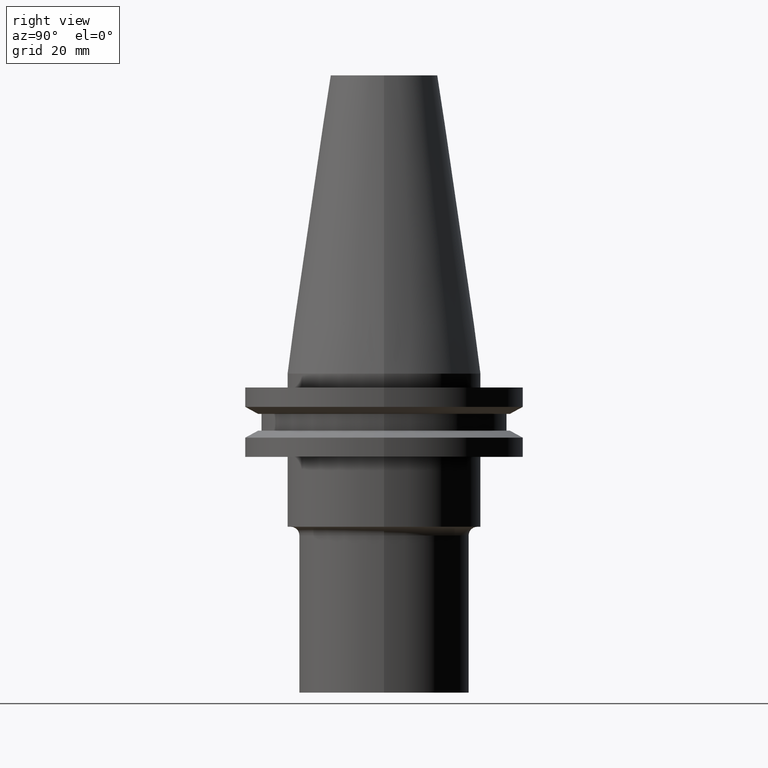
[diagram: clean part render]
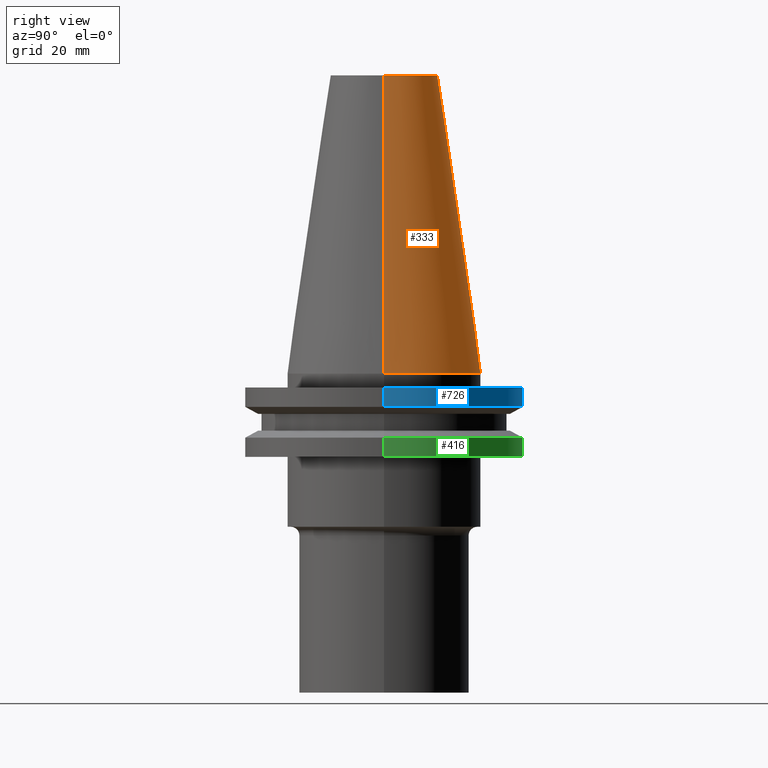
[diagram: same view with three faces highlighted in distinct colors, each labeled with its STEP entity id]
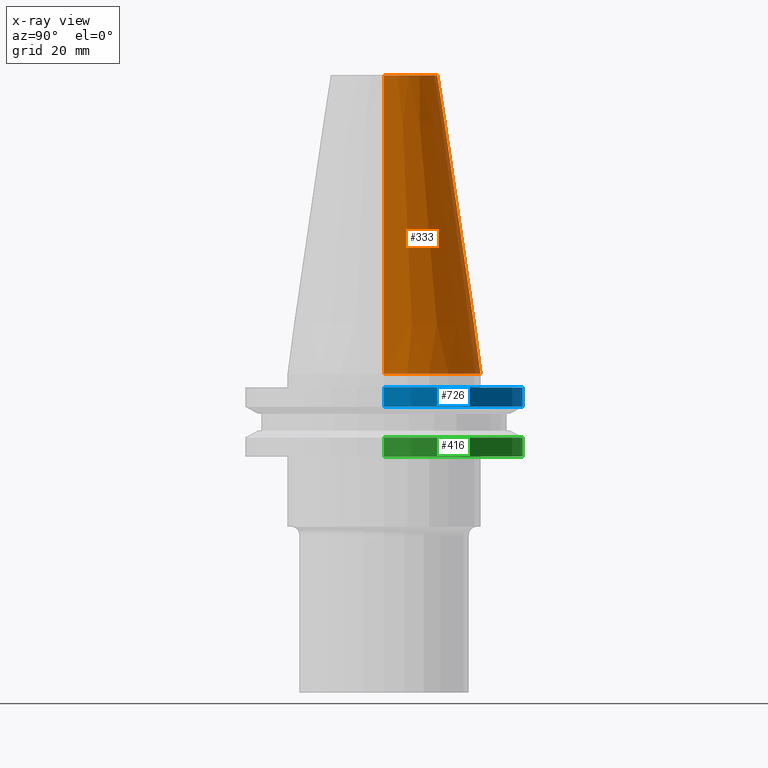
[diagram: x-ray of the same camera — body ghosted, the three highlighted faces saturated]
A machine part, right view with three faces highlighted in distinct colors.
The next image is the same camera in x-ray (body ghosted, the three faces saturated) — at least one of them is partly hidden behind the body in this view.
Their STEP definitions:

[orange] entity #333 — the highlighted conical surface has half-angle 8.297 deg.
#2 = VERTEX_POINT ( 'NONE', #377 ) ;
#5 = EDGE_CURVE ( 'NONE', #2, #93, #462, .T. ) ;
#12 = DIRECTION ( 'NONE',  ( 0.1443082272672999711, 1.767266086135276757E-17, -0.9895327864921755756 ) ) ;
#36 = ORIENTED_EDGE ( 'NONE', *, *, #292, .F. ) ;
#41 = VERTEX_POINT ( 'NONE', #548 ) ;
#61 = AXIS2_PLACEMENT_3D ( 'NONE', #593, #531, #595 ) ;
#93 = VERTEX_POINT ( 'NONE', #94 ) ;
#94 = CARTESIAN_POINT ( 'NONE',  ( -22.22500000000000142, 0.000000000000000000, 0.000000000000000000 ) ) ;
#140 = ORIENTED_EDGE ( 'NONE', *, *, #265, .F. ) ;
#156 = VECTOR ( 'NONE', #12, 999.9999999999998863 ) ;
#160 = ORIENTED_EDGE ( 'NONE', *, *, #285, .T. ) ;
#171 = AXIS2_PLACEMENT_3D ( 'NONE', #719, #357, #532 ) ;
#187 = FACE_OUTER_BOUND ( 'NONE', #327, .T. ) ;
#212 = CONICAL_SURFACE ( 'NONE', #61, 22.22500000000000142, 0.1448138465474119174 ) ;
#242 = CARTESIAN_POINT ( 'NONE',  ( 22.22500000000000142, 2.721777511104992849E-15, 0.000000000000000000 ) ) ;
#265 = EDGE_CURVE ( 'NONE', #41, #93, #759, .T. ) ;
#285 = EDGE_CURVE ( 'NONE', #568, #2, #476, .T. ) ;
#292 = EDGE_CURVE ( 'NONE', #568, #41, #667, .T. ) ;
#327 = EDGE_LOOP ( 'NONE', ( #36, #160, #507, #140 ) ) ;
#333 = ADVANCED_FACE ( 'NONE', ( #187 ), #212, .T. ) ;
#357 = DIRECTION ( 'NONE',  ( -0.000000000000000000, -0.000000000000000000, 1.000000000000000000 ) ) ;
#377 = CARTESIAN_POINT ( 'NONE',  ( 22.22500000000000142, 2.721777511104992849E-15, 0.000000000000000000 ) ) ;
#392 = CARTESIAN_POINT ( 'NONE',  ( -22.22500000000000142, 0.000000000000000000, 0.000000000000000000 ) ) ;
#402 = CARTESIAN_POINT ( 'NONE',  ( 12.27178102086201150, 2.112318622904291439E-15, 68.25000000000000000 ) ) ;
#425 = VECTOR ( 'NONE', #633, 999.9999999999998863 ) ;
#431 = CARTESIAN_POINT ( 'NONE',  ( 0.000000000000000000, 0.000000000000000000, 0.000000000000000000 ) ) ;
#462 = CIRCLE ( 'NONE', #663, 22.22500000000000142 ) ;
#476 = LINE ( 'NONE', #242, #156 ) ;
#507 = ORIENTED_EDGE ( 'NONE', *, *, #5, .T. ) ;
#531 = DIRECTION ( 'NONE',  ( 0.000000000000000000, 0.000000000000000000, -1.000000000000000000 ) ) ;
#532 = DIRECTION ( 'NONE',  ( 1.000000000000000000, 0.000000000000000000, 0.000000000000000000 ) ) ;
#548 = CARTESIAN_POINT ( 'NONE',  ( -12.27178102086201150, 0.000000000000000000, 68.25000000000000000 ) ) ;
#568 = VERTEX_POINT ( 'NONE', #402 ) ;
#593 = CARTESIAN_POINT ( 'NONE',  ( 0.000000000000000000, 0.000000000000000000, 0.000000000000000000 ) ) ;
#595 = DIRECTION ( 'NONE',  ( -1.000000000000000000, 0.000000000000000000, 0.000000000000000000 ) ) ;
#617 = DIRECTION ( 'NONE',  ( 1.000000000000000000, 0.000000000000000000, 0.000000000000000000 ) ) ;
#624 = DIRECTION ( 'NONE',  ( -0.000000000000000000, -0.000000000000000000, 1.000000000000000000 ) ) ;
#633 = DIRECTION ( 'NONE',  ( -0.1443082272672999711, 0.000000000000000000, -0.9895327864921755756 ) ) ;
#663 = AXIS2_PLACEMENT_3D ( 'NONE', #431, #624, #617 ) ;
#667 = CIRCLE ( 'NONE', #171, 12.27178102086201150 ) ;
#719 = CARTESIAN_POINT ( 'NONE',  ( 0.000000000000000000, 0.000000000000000000, 68.25000000000000000 ) ) ;
#759 = LINE ( 'NONE', #392, #425 ) ;

[blue] entity #726 — the highlighted cylindrical surface (partial cylindrical patch) has radius 31.75 mm, axis along (-0, -0, 1).
#17 = VERTEX_POINT ( 'NONE', #257 ) ;
#26 = DIRECTION ( 'NONE',  ( -0.000000000000000000, -0.000000000000000000, 1.000000000000000000 ) ) ;
#34 = VERTEX_POINT ( 'NONE', #435 ) ;
#44 = FACE_OUTER_BOUND ( 'NONE', #668, .T. ) ;
#52 = DIRECTION ( 'NONE',  ( -0.000000000000000000, -0.000000000000000000, 1.000000000000000000 ) ) ;
#76 = VECTOR ( 'NONE', #552, 1000.000000000000000 ) ;
#96 = CARTESIAN_POINT ( 'NONE',  ( 31.75000000000000000, 0.000000000000000000, -7.605276606597335842 ) ) ;
#106 = AXIS2_PLACEMENT_3D ( 'NONE', #122, #303, #131 ) ;
#122 = CARTESIAN_POINT ( 'NONE',  ( 0.000000000000000000, 0.000000000000000000, -3.174999999999997158 ) ) ;
#128 = AXIS2_PLACEMENT_3D ( 'NONE', #504, #52, #575 ) ;
#131 = DIRECTION ( 'NONE',  ( 1.000000000000000000, 0.000000000000000000, 0.000000000000000000 ) ) ;
#135 = EDGE_CURVE ( 'NONE', #601, #34, #474, .T. ) ;
#141 = LINE ( 'NONE', #491, #76 ) ;
#143 = ORIENTED_EDGE ( 'NONE', *, *, #135, .T. ) ;
#229 = CYLINDRICAL_SURFACE ( 'NONE', #534, 31.75000000000000000 ) ;
#257 = CARTESIAN_POINT ( 'NONE',  ( -31.75000000000000000, 3.888253587292846476E-15, -3.174999999999997158 ) ) ;
#287 = DIRECTION ( 'NONE',  ( 1.000000000000000000, 0.000000000000000000, 0.000000000000000000 ) ) ;
#303 = DIRECTION ( 'NONE',  ( -0.000000000000000000, -0.000000000000000000, 1.000000000000000000 ) ) ;
#306 = ORIENTED_EDGE ( 'NONE', *, *, #596, .F. ) ;
#313 = ORIENTED_EDGE ( 'NONE', *, *, #362, .F. ) ;
#328 = LINE ( 'NONE', #566, #724 ) ;
#362 = EDGE_CURVE ( 'NONE', #763, #17, #638, .T. ) ;
#408 = CARTESIAN_POINT ( 'NONE',  ( 0.000000000000000000, 0.000000000000000000, 68.25000000000000000 ) ) ;
#435 = CARTESIAN_POINT ( 'NONE',  ( -31.75000000000000000, 3.888253587292846476E-15, -7.605276606597335842 ) ) ;
#474 = CIRCLE ( 'NONE', #128, 31.75000000000000000 ) ;
#491 = CARTESIAN_POINT ( 'NONE',  ( 31.75000000000000000, 0.000000000000000000, 68.25000000000000000 ) ) ;
#504 = CARTESIAN_POINT ( 'NONE',  ( 0.000000000000000000, 0.000000000000000000, -7.605276606597335842 ) ) ;
#534 = AXIS2_PLACEMENT_3D ( 'NONE', #408, #766, #287 ) ;
#552 = DIRECTION ( 'NONE',  ( -0.000000000000000000, -0.000000000000000000, 1.000000000000000000 ) ) ;
#566 = CARTESIAN_POINT ( 'NONE',  ( -31.75000000000000000, 3.888253587292846476E-15, 68.25000000000000000 ) ) ;
#575 = DIRECTION ( 'NONE',  ( 1.000000000000000000, 0.000000000000000000, 0.000000000000000000 ) ) ;
#596 = EDGE_CURVE ( 'NONE', #601, #763, #141, .T. ) ;
#601 = VERTEX_POINT ( 'NONE', #96 ) ;
#638 = CIRCLE ( 'NONE', #106, 31.75000000000000000 ) ;
#668 = EDGE_LOOP ( 'NONE', ( #143, #732, #313, #306 ) ) ;
#705 = CARTESIAN_POINT ( 'NONE',  ( 31.75000000000000000, 0.000000000000000000, -3.174999999999997158 ) ) ;
#722 = EDGE_CURVE ( 'NONE', #34, #17, #328, .T. ) ;
#724 = VECTOR ( 'NONE', #26, 1000.000000000000000 ) ;
#726 = ADVANCED_FACE ( 'NONE', ( #44 ), #229, .T. ) ;
#732 = ORIENTED_EDGE ( 'NONE', *, *, #722, .T. ) ;
#763 = VERTEX_POINT ( 'NONE', #705 ) ;
#766 = DIRECTION ( 'NONE',  ( -0.000000000000000000, -0.000000000000000000, 1.000000000000000000 ) ) ;

[green] entity #416 — the highlighted cylindrical surface (partial cylindrical patch) has radius 31.75 mm, axis along (-0, -0, 1).
#14 = EDGE_CURVE ( 'NONE', #90, #193, #684, .T. ) ;
#25 = CARTESIAN_POINT ( 'NONE',  ( -31.75000000000000000, 3.888253587292846476E-15, 68.25000000000000000 ) ) ;
#38 = AXIS2_PLACEMENT_3D ( 'NONE', #414, #180, #776 ) ;
#63 = VECTOR ( 'NONE', #264, 1000.000000000000000 ) ;
#81 = CIRCLE ( 'NONE', #253, 31.75000000000000000 ) ;
#90 = VERTEX_POINT ( 'NONE', #738 ) ;
#95 = EDGE_CURVE ( 'NONE', #606, #193, #81, .T. ) ;
#138 = DIRECTION ( 'NONE',  ( -0.000000000000000000, -0.000000000000000000, 1.000000000000000000 ) ) ;
#158 = DIRECTION ( 'NONE',  ( 1.000000000000000000, 0.000000000000000000, 0.000000000000000000 ) ) ;
#170 = ORIENTED_EDGE ( 'NONE', *, *, #14, .T. ) ;
#177 = CARTESIAN_POINT ( 'NONE',  ( 31.74999999999999289, 0.000000000000000000, -19.04999999999999716 ) ) ;
#180 = DIRECTION ( 'NONE',  ( -0.000000000000000000, -0.000000000000000000, 1.000000000000000000 ) ) ;
#193 = VERTEX_POINT ( 'NONE', #457 ) ;
#218 = CARTESIAN_POINT ( 'NONE',  ( 0.000000000000000000, 0.000000000000000000, -19.04999999999999716 ) ) ;
#236 = AXIS2_PLACEMENT_3D ( 'NONE', #218, #138, #158 ) ;
#253 = AXIS2_PLACEMENT_3D ( 'NONE', #368, #432, #551 ) ;
#264 = DIRECTION ( 'NONE',  ( -0.000000000000000000, -0.000000000000000000, 1.000000000000000000 ) ) ;
#268 = EDGE_LOOP ( 'NONE', ( #758, #170, #559, #627 ) ) ;
#276 = LINE ( 'NONE', #384, #602 ) ;
#283 = VERTEX_POINT ( 'NONE', #177 ) ;
#307 = CYLINDRICAL_SURFACE ( 'NONE', #38, 31.75000000000000000 ) ;
#353 = CIRCLE ( 'NONE', #236, 31.74999999999999289 ) ;
#368 = CARTESIAN_POINT ( 'NONE',  ( 0.000000000000000000, 0.000000000000000000, -14.65472339340266572 ) ) ;
#378 = DIRECTION ( 'NONE',  ( -0.000000000000000000, -0.000000000000000000, 1.000000000000000000 ) ) ;
#384 = CARTESIAN_POINT ( 'NONE',  ( 31.75000000000000000, 0.000000000000000000, 68.25000000000000000 ) ) ;
#389 = CARTESIAN_POINT ( 'NONE',  ( 31.75000000000000000, 0.000000000000000000, -14.65472339340266572 ) ) ;
#414 = CARTESIAN_POINT ( 'NONE',  ( 0.000000000000000000, 0.000000000000000000, 68.25000000000000000 ) ) ;
#416 = ADVANCED_FACE ( 'NONE', ( #471 ), #307, .T. ) ;
#432 = DIRECTION ( 'NONE',  ( -0.000000000000000000, -0.000000000000000000, 1.000000000000000000 ) ) ;
#457 = CARTESIAN_POINT ( 'NONE',  ( -31.75000000000000000, 3.888253587292846476E-15, -14.65472339340266572 ) ) ;
#471 = FACE_OUTER_BOUND ( 'NONE', #268, .T. ) ;
#551 = DIRECTION ( 'NONE',  ( 1.000000000000000000, 0.000000000000000000, 0.000000000000000000 ) ) ;
#559 = ORIENTED_EDGE ( 'NONE', *, *, #95, .F. ) ;
#602 = VECTOR ( 'NONE', #378, 1000.000000000000000 ) ;
#606 = VERTEX_POINT ( 'NONE', #389 ) ;
#627 = ORIENTED_EDGE ( 'NONE', *, *, #681, .F. ) ;
#635 = EDGE_CURVE ( 'NONE', #283, #90, #353, .T. ) ;
#681 = EDGE_CURVE ( 'NONE', #283, #606, #276, .T. ) ;
#684 = LINE ( 'NONE', #25, #63 ) ;
#738 = CARTESIAN_POINT ( 'NONE',  ( -31.74999999999999289, 3.888253587292845687E-15, -19.04999999999999716 ) ) ;
#758 = ORIENTED_EDGE ( 'NONE', *, *, #635, .T. ) ;
#776 = DIRECTION ( 'NONE',  ( 1.000000000000000000, 0.000000000000000000, 0.000000000000000000 ) ) ;